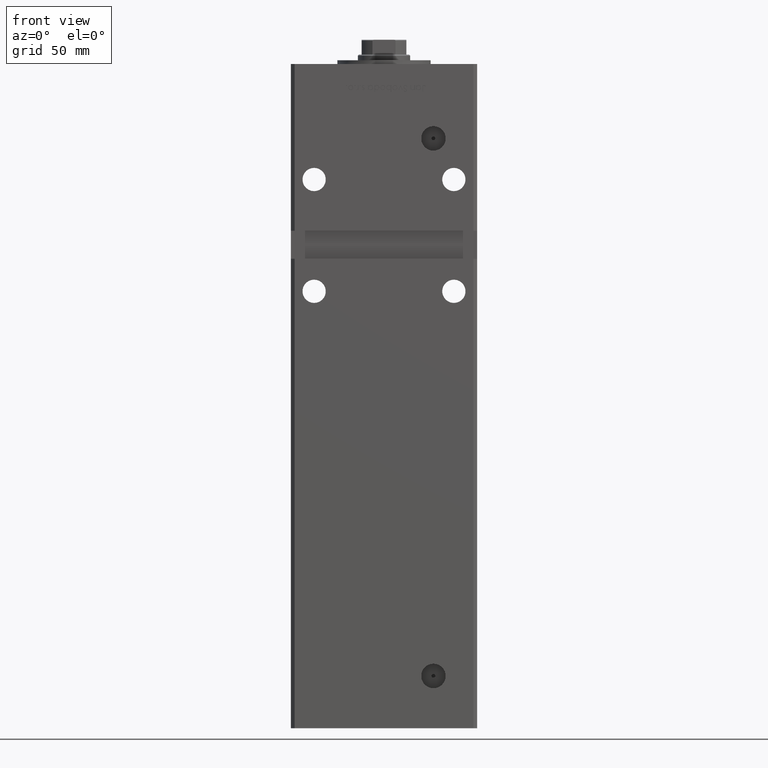
[diagram: clean part render]
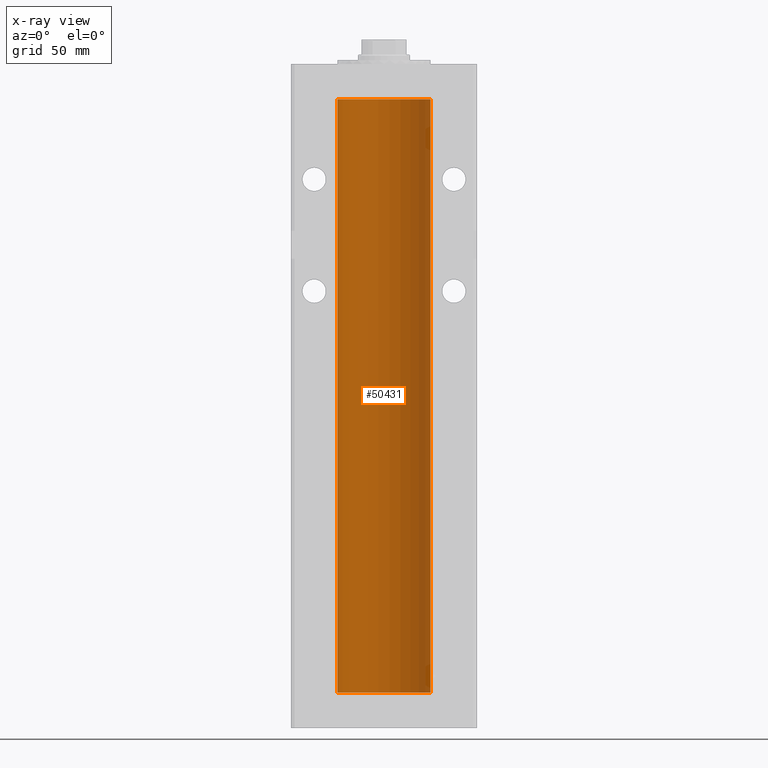
[diagram: x-ray — body ghosted, one internal face saturated and labeled with its STEP entity id]
A machine part, front view, then the same camera in x-ray: the body is ghosted and one INTERNAL B-rep face — a face not visible from any outside direction — is saturated and labeled: STEP entity #50431.
In plain terms, the highlighted cylindrical surface (partial cylindrical patch) has radius 25 mm, axis along (-0, -0, -1).
Its self-contained STEP definition (entity closure, byte-faithful):
#453 = DIRECTION ( 'NONE',  ( 1.000000000000000000, 0.000000000000000000, 0.000000000000000000 ) ) ;
#565 = ORIENTED_EDGE ( 'NONE', *, *, #16908, .T. ) ;
#1937 = CARTESIAN_POINT ( 'NONE',  ( -25.00000000000000000, 0.000000000000000000, 318.5000000000000000 ) ) ;
#3980 = CARTESIAN_POINT ( 'NONE',  ( -25.00000000000000000, 0.000000000000000000, 318.5000000000000000 ) ) ;
#4761 = ORIENTED_EDGE ( 'NONE', *, *, #5126, .F. ) ;
#5126 = EDGE_CURVE ( 'NONE', #18277, #38502, #22686, .T. ) ;
#6957 = VERTEX_POINT ( 'NONE', #1937 ) ;
#8524 = DIRECTION ( 'NONE',  ( -0.000000000000000000, -0.000000000000000000, -1.000000000000000000 ) ) ;
#8762 = EDGE_LOOP ( 'NONE', ( #4761, #49180, #565, #21798 ) ) ;
#9131 = DIRECTION ( 'NONE',  ( -1.000000000000000000, 0.000000000000000000, 0.000000000000000000 ) ) ;
#9889 = VECTOR ( 'NONE', #8524, 1000.000000000000000 ) ;
#11060 = DIRECTION ( 'NONE',  ( -0.000000000000000000, -0.000000000000000000, -1.000000000000000000 ) ) ;
#13449 = CARTESIAN_POINT ( 'NONE',  ( 25.00000000000000000, 3.061616997868383043E-15, 318.5000000000000000 ) ) ;
#14124 = CIRCLE ( 'NONE', #21002, 25.00000000000000000 ) ;
#14468 = EDGE_CURVE ( 'NONE', #18277, #6957, #14124, .T. ) ;
#16908 = EDGE_CURVE ( 'NONE', #6957, #52540, #40813, .T. ) ;
#18277 = VERTEX_POINT ( 'NONE', #13449 ) ;
#20081 = DIRECTION ( 'NONE',  ( -0.000000000000000000, 0.000000000000000000, 1.000000000000000000 ) ) ;
#20462 = CIRCLE ( 'NONE', #49587, 25.00000000000000000 ) ;
#21002 = AXIS2_PLACEMENT_3D ( 'NONE', #52033, #20081, #47733 ) ;
#21500 = CARTESIAN_POINT ( 'NONE',  ( -25.00000000000000000, 0.000000000000000000, 0.000000000000000000 ) ) ;
#21798 = ORIENTED_EDGE ( 'NONE', *, *, #24267, .F. ) ;
#22686 = LINE ( 'NONE', #39318, #46571 ) ;
#24171 = CARTESIAN_POINT ( 'NONE',  ( 0.000000000000000000, 0.000000000000000000, 0.000000000000000000 ) ) ;
#24267 = EDGE_CURVE ( 'NONE', #38502, #52540, #20462, .T. ) ;
#29610 = FACE_OUTER_BOUND ( 'NONE', #8762, .T. ) ;
#33099 = CARTESIAN_POINT ( 'NONE',  ( 0.000000000000000000, 0.000000000000000000, 318.5000000000000000 ) ) ;
#38502 = VERTEX_POINT ( 'NONE', #47471 ) ;
#39318 = CARTESIAN_POINT ( 'NONE',  ( 25.00000000000000000, 3.061616997868383043E-15, 318.5000000000000000 ) ) ;
#40813 = LINE ( 'NONE', #3980, #9889 ) ;
#41316 = DIRECTION ( 'NONE',  ( -0.000000000000000000, 0.000000000000000000, 1.000000000000000000 ) ) ;
#45867 = AXIS2_PLACEMENT_3D ( 'NONE', #33099, #49989, #9131 ) ;
#45970 = CYLINDRICAL_SURFACE ( 'NONE', #45867, 25.00000000000000000 ) ;
#46571 = VECTOR ( 'NONE', #11060, 1000.000000000000000 ) ;
#47471 = CARTESIAN_POINT ( 'NONE',  ( 25.00000000000000000, 3.061616997868383043E-15, 0.000000000000000000 ) ) ;
#47733 = DIRECTION ( 'NONE',  ( 1.000000000000000000, 0.000000000000000000, 0.000000000000000000 ) ) ;
#49180 = ORIENTED_EDGE ( 'NONE', *, *, #14468, .T. ) ;
#49587 = AXIS2_PLACEMENT_3D ( 'NONE', #24171, #41316, #453 ) ;
#49989 = DIRECTION ( 'NONE',  ( -0.000000000000000000, -0.000000000000000000, -1.000000000000000000 ) ) ;
#50431 = ADVANCED_FACE ( 'NONE', ( #29610 ), #45970, .F. ) ;
#52033 = CARTESIAN_POINT ( 'NONE',  ( 0.000000000000000000, 0.000000000000000000, 318.5000000000000000 ) ) ;
#52540 = VERTEX_POINT ( 'NONE', #21500 ) ;